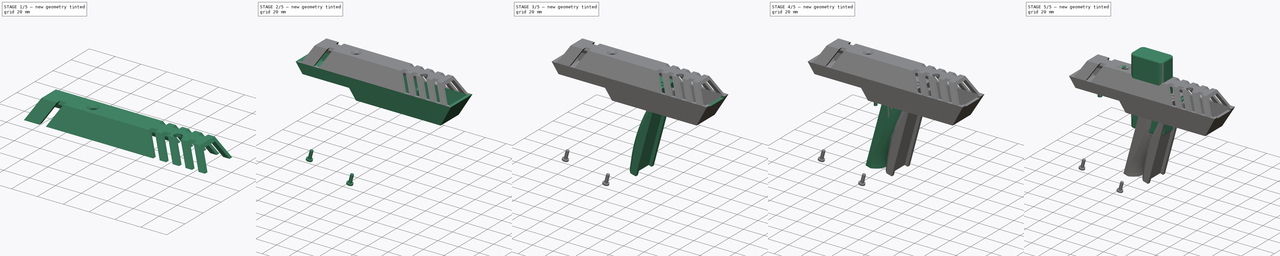
[diagram: build sequence overview — one tinted view per stage of 5, left to right]
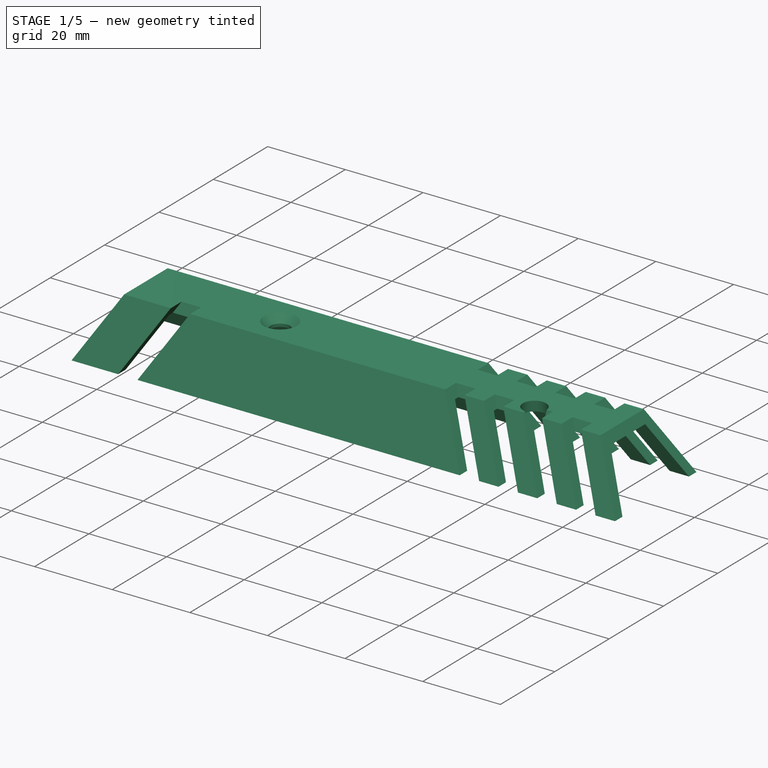
[diagram: stage 1 of 5 — iso view after this stage's code; geometry added in this stage tinted green]
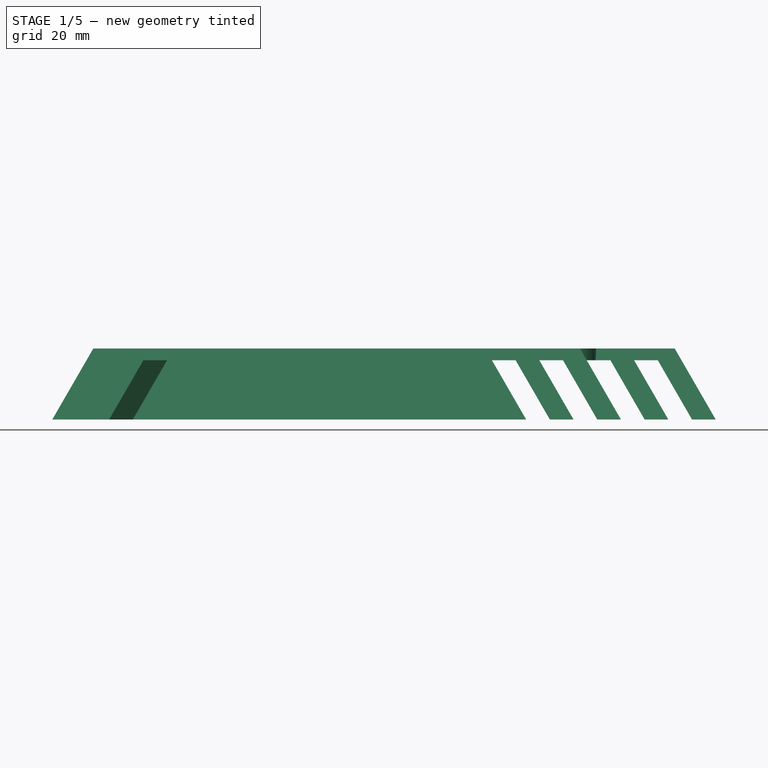
[diagram: stage 1 of 5 — front view after this stage's code; geometry added in this stage tinted green]
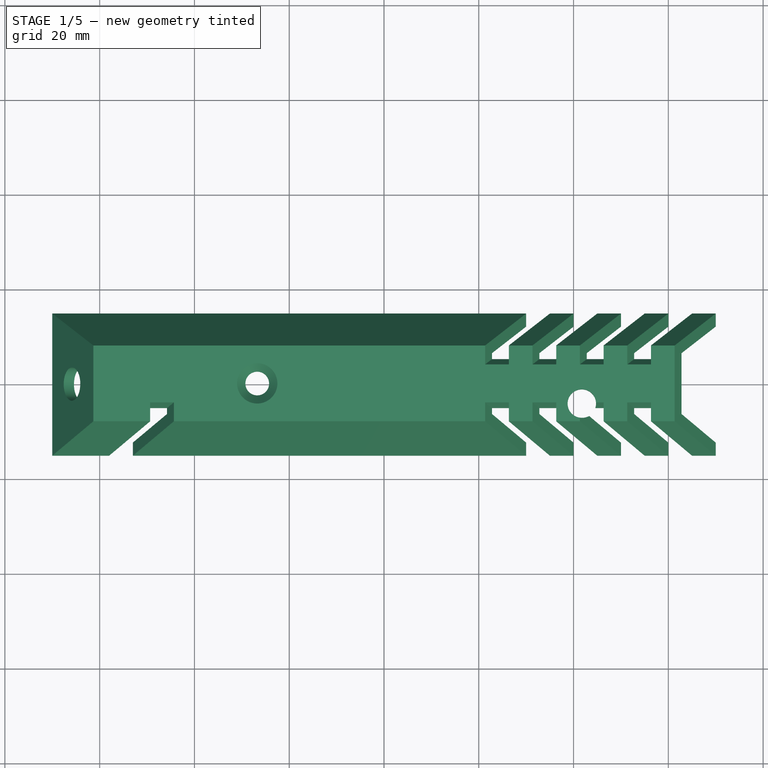
[diagram: stage 1 of 5 — top view after this stage's code; geometry added in this stage tinted green]
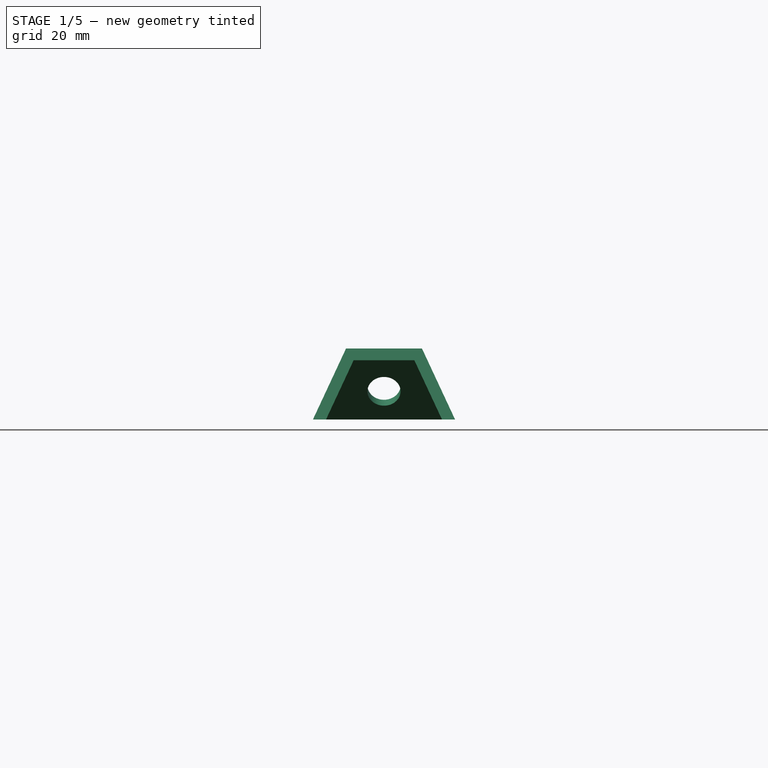
[diagram: stage 1 of 5 — right view after this stage's code; geometry added in this stage tinted green]
FCSTD DOCUMENT  (FreeCAD 0.18R16110 (Git))
Label: Ir duellers
License: All rights reserved
LicenseURL: http://en.wikipedia.org/wiki/All_rights_reserved
objects: Sketcher::SketchObject×35, PartDesign::Pocket×19, Part::Feature×18, PartDesign::Pad×11, PartDesign::Body×8, Part::FeaturePython×8, App::Part×5, PartDesign::SubtractivePipe×4, PartDesign::Fillet×2, PartDesign::Thickness×2, PartDesign::Draft×2, PartDesign::Mirrored×2, PartDesign::Chamfer×2, PartDesign::AdditiveCylinder×1, PartDesign::LinearPattern×1, PartDesign::MultiTransform×1
note: 151 computed .brp shape members not serialized (recipe doc carries the construction recipe); baked Part::Feature solids carry a one-line shape summary decoded from their .brp

FEATURE [Sketcher::SketchObject] Sketch005
  MapMode = 5
  Support = -> [XY_Plane008]
  sketch-geometry (4):
    g0: LineSegment StartX=-70 StartY=15 StartZ=0 EndX=70 EndY=15 EndZ=0
    g1: LineSegment StartX=70 StartY=15 StartZ=0 EndX=70 EndY=-15 EndZ=0
    g2: LineSegment StartX=70 StartY=-15 StartZ=0 EndX=-70 EndY=-15 EndZ=0
    g3: LineSegment StartX=-70 StartY=-15 StartZ=0 EndX=-70 EndY=15 EndZ=0
  constraints (10):
    c: Coincident(g0,g1)
    c: Coincident(g1,g2)
    c: Coincident(g2,g3)
    c: Coincident(g3,g0)
    c: Horizontal(g2)
    c: Vertical(g1)
    c: Symmetric(g0,g2,g-1)
    c: Distance(g3) = 30
    c: Distance(g0) = 140
    c: Symmetric(g0,g0,g-2)
FEATURE [PartDesign::Pad] Pad004
  Length = 15
  Length2 = 100
  Profile = -> Sketch005
  Type = 0
FEATURE [PartDesign::Draft] Draft
  Angle = 25
  Base = -> Pad004 [Face1,Face3]
  BaseFeature = -> Pad004
  NeutralPlane = -> Pad004 [Face5]
  Reversed = true
FEATURE [PartDesign::Draft] Draft001
  Angle = 30
  Base = -> Draft [Face4,Face2]
  BaseFeature = -> Draft
  NeutralPlane = -> Draft [Face5]
  Reversed = true
FEATURE [PartDesign::Thickness] Thickness001
  Base = -> Draft001 [Face5,Face2]
  BaseFeature = -> Draft001
  Join = 0
  Mode = 0
  Reversed = true
  Value = 2.5
FEATURE [Sketcher::SketchObject] Sketch014
  ExternalGeometry = -> [Thickness001]
  MapMode = 5
  Placement = pos=(0,0,15) rot=(0,0,1;0rad)
  Support = -> [Thickness001]
  sketch-geometry (4):
    g0: LineSegment StartX=51.3397 StartY=-15 StartZ=0 EndX=56.3397 EndY=-15 EndZ=0
    g1: LineSegment StartX=56.3397 StartY=-15 StartZ=0 EndX=56.3397 EndY=-4 EndZ=0
    g2: LineSegment StartX=56.3397 StartY=-4 StartZ=0 EndX=51.3397 EndY=-4 EndZ=0
    g3: LineSegment StartX=51.3397 StartY=-4 StartZ=0 EndX=51.3397 EndY=-15 EndZ=0
  constraints (12):
    c: Coincident(g0,g1)
    c: Coincident(g1,g2)
    c: Coincident(g2,g3)
    c: Coincident(g3,g0)
    c: Horizontal(g0)
    c: Horizontal(g2)
    c: Vertical(g1)
    c: Vertical(g3)
    c: PointOnObject(g0,g-5)
    c: DistanceX(g1,g-3) = 5
    c: Distance(g0) = 5
    c: Distance(g3) = 11
FEATURE [PartDesign::SubtractivePipe] SubtractivePipe002  label="cooling fin"
  AuxilleryCurvelinear = true
  AuxillerySpineTangent = false
  BaseFeature = -> Thickness001
  Binormal = (0,0,0)
  Mode = 0
  Profile = -> Sketch014
  Spine = -> Thickness001 [Edge1]
  SpineTangent = false
  Transformation = 0
  Transition = 0
FEATURE [PartDesign::Mirrored] Mirrored
  MirrorPlane = -> XZ_Plane008
FEATURE [PartDesign::LinearPattern] LinearPattern
  Direction = -> X_Axis008
  Length = 30
  Occurrences = 4
  Reversed = true
FEATURE [PartDesign::MultiTransform] MultiTransform  label="cooling fins"
  BaseFeature = -> SubtractivePipe002
  Originals = -> [SubtractivePipe002]
  Transformations = -> [Mirrored,LinearPattern]
FEATURE [Sketcher::SketchObject] Sketch015
  ExternalGeometry = -> [MultiTransform]
  MapMode = 5
  Placement = pos=(0,0,15) rot=(0,0,1;0rad)
  Support = -> [MultiTransform]
  sketch-geometry (1):
    g0: Circle CenterX=41.7397 CenterY=-4.25 CenterZ=0 NormalX=0 NormalY=0 NormalZ=1 AngleXU=0 Radius=3
  constraints (3):
    c: Radius(g0) = 3
    c: DistanceY(g0,g-3) = 0.25
    c: DistanceX(g-3,g0) = 0.4
FEATURE [PartDesign::Pocket] Pocket005  label="led hole"
  BaseFeature = -> MultiTransform
  Length = 5
  Length2 = 100
  Profile = -> Sketch015
  Type = 1
FEATURE [Sketcher::SketchObject] Sketch023
  MapMode = 5
  Placement = pos=(0,0,0) rot=(1,0,0;3.14159rad)
  Support = -> [Pad009]
  sketch-geometry (1):
    g0: Circle CenterX=0 CenterY=0 CenterZ=0 NormalX=0 NormalY=0 NormalZ=1 AngleXU=0 Radius=2.19496
FEATURE [Sketcher::SketchObject] Sketch024
  MapMode = 5
  Placement = pos=(0,0,15) rot=(0,0,1;0rad)
  Support = -> [Pocket005]
  sketch-geometry (1):
    g0: Circle CenterX=-26.75 CenterY=0 CenterZ=0 NormalX=0 NormalY=0 NormalZ=1 AngleXU=0 Radius=2.5
  constraints (3):
    c: PointOnObject(g0,g-1)
    c: DistanceX(g0,g-1) = 26.75
    c: Radius(g0) = 2.5
FEATURE [PartDesign::Pocket] Pocket010
  BaseFeature = -> Pocket005
  Length = 5
  Length2 = 100
  Profile = -> Sketch024
  Type = 1
FEATURE [PartDesign::Chamfer] Chamfer
  Base = -> Pocket010 [Edge47]
  BaseFeature = -> Pocket010
  Size = 1.75
FEATURE [Sketcher::SketchObject] Sketch026
  ExternalGeometry = -> [Chamfer]
  MapMode = 5
  Placement = pos=(-52.5,0,30.3109) rot=(0.447214,-0.447214,-0.774597;1.82348rad)
  Support = -> [Chamfer]
  sketch-geometry (1):
    g0: Circle CenterX=0 CenterY=-26.6795 CenterZ=0 NormalX=0 NormalY=0 NormalZ=1 AngleXU=0 Radius=3.5
  constraints (3):
    c: PointOnObject(g0,g-2)
    c: DistanceY(g0,g-5) = 9
    c: Radius(g0) = 3.5
FEATURE [PartDesign::Pocket] Pocket013  label="reset switch hole"
  BaseFeature = -> Chamfer
  Length = 5
  Length2 = 100
  Profile = -> Sketch026
  Type = 2
FEATURE [App::Part] Part  label="screws"
  Group = -> [Screw001,Screw002,Screw,Screw003,Screw004,Screw005,Screw006,Screw007]
  Origin = -> Origin010
FEATURE [Sketcher::SketchObject] Sketch034
  ExternalGeometry = -> [Pocket013]
  MapMode = 5
  Placement = pos=(0,0,15) rot=(0,0,1;0rad)
  Support = -> [Pocket013]
  sketch-geometry (4):
    g0: LineSegment StartX=-49.3397 StartY=-4 StartZ=0 EndX=-44.3397 EndY=-4 EndZ=0
    g1: LineSegment StartX=-44.3397 StartY=-4 StartZ=0 EndX=-44.3397 EndY=-15 EndZ=0
    g2: LineSegment StartX=-44.3397 StartY=-15 StartZ=0 EndX=-49.3397 EndY=-15 EndZ=0
    g3: LineSegment StartX=-49.3397 StartY=-15 StartZ=0 EndX=-49.3397 EndY=-4 EndZ=0
  constraints (12):
    c: Coincident(g0,g1)
    c: Coincident(g1,g2)
    c: Coincident(g2,g3)
    c: Coincident(g3,g0)
    c: Horizontal(g0)
    c: Horizontal(g2)
    c: Vertical(g1)
    c: Vertical(g3)
    c: Horizontal(g2,g-4)
    c: Distance(g3) = 11
    c: Distance(g0) = 5
    c: DistanceX(g-4,g2) = 12
FEATURE [PartDesign::SubtractivePipe] SubtractivePipe003
  AuxilleryCurvelinear = true
  AuxillerySpineTangent = false
  BaseFeature = -> Pocket013
  Binormal = (0,0,0)
  Mode = 0
  Profile = -> Sketch034
  Spine = -> Pocket013 [Edge140]
  SpineTangent = false
  Transformation = 0
  Transition = 0
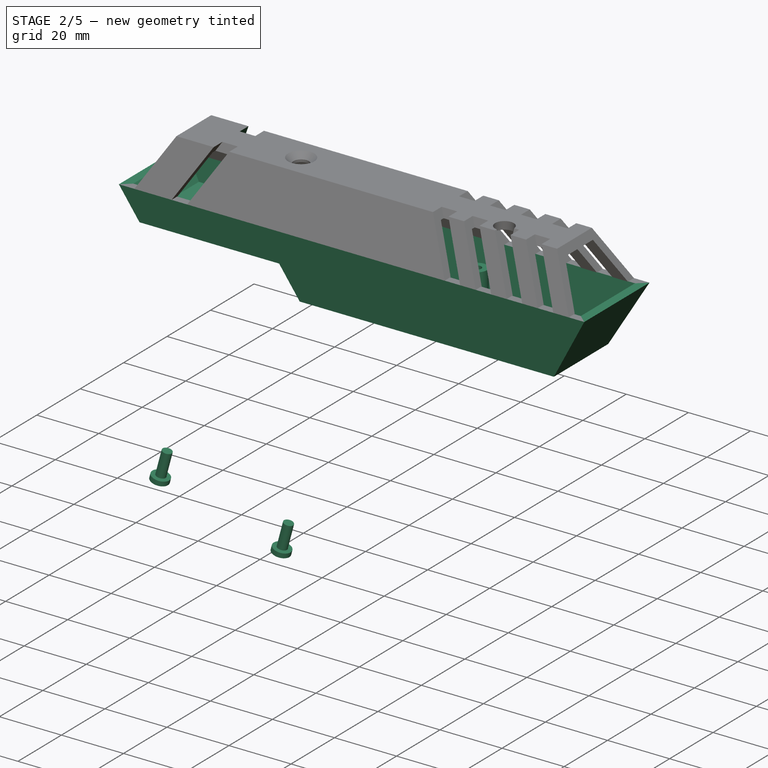
[diagram: stage 2 of 5 — iso view after this stage's code; geometry added in this stage tinted green]
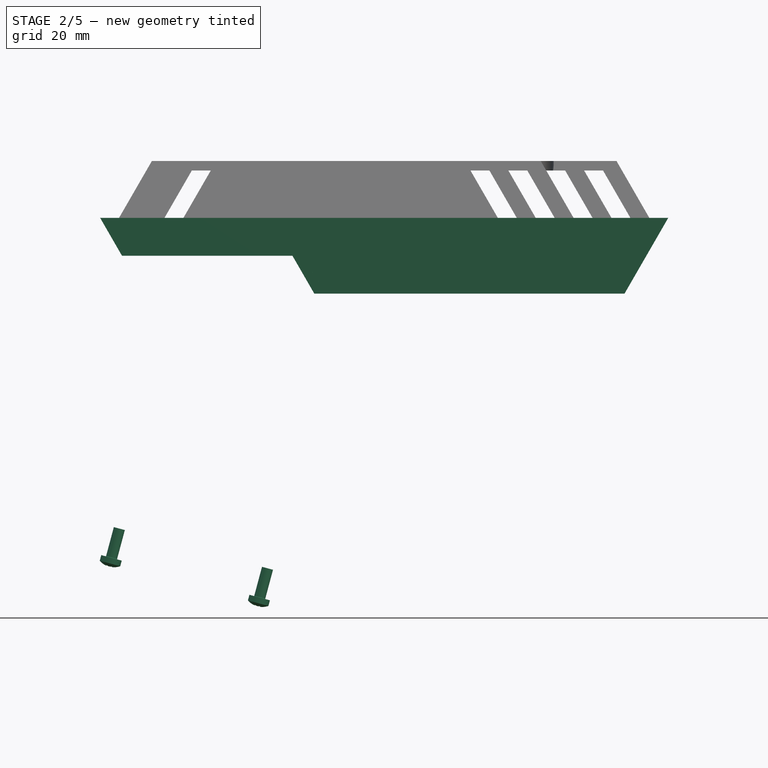
[diagram: stage 2 of 5 — front view after this stage's code; geometry added in this stage tinted green]
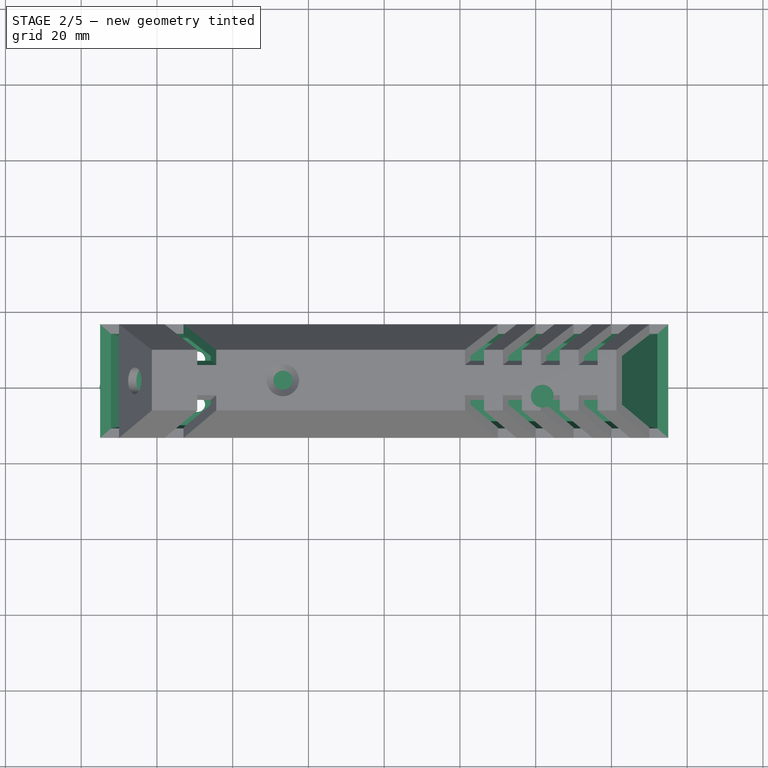
[diagram: stage 2 of 5 — top view after this stage's code; geometry added in this stage tinted green]
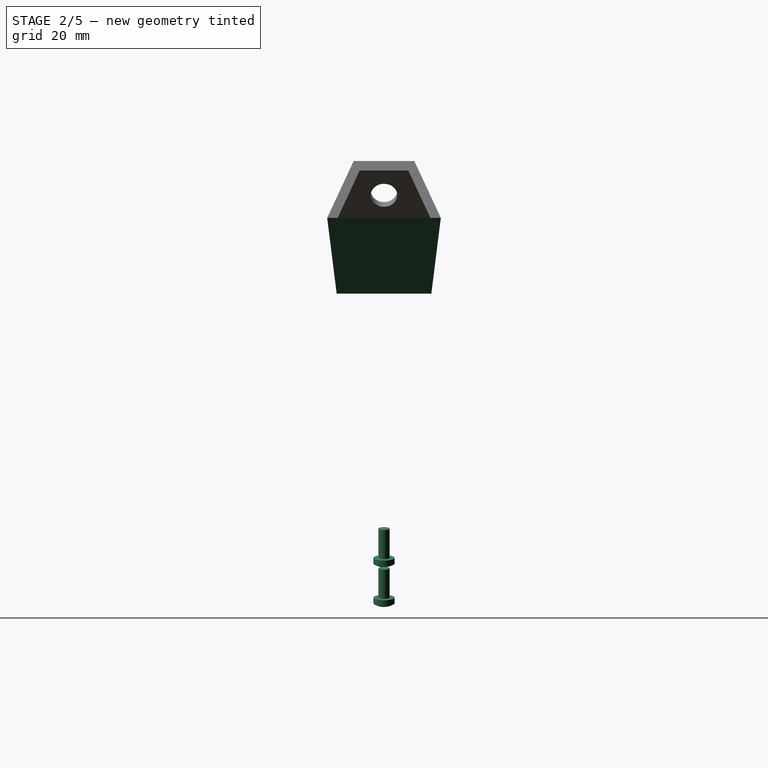
[diagram: stage 2 of 5 — right view after this stage's code; geometry added in this stage tinted green]
FEATURE [PartDesign::Body] Body  label="battery case"
  Group = -> [Sketch,Pad,Fillet,Fillet001]
  Origin = -> Origin004
  Placement = pos=(-42.5512,0,-60.1655) rot=(0,1,0;0.261799rad)
  Tip = -> Fillet001
FEATURE [Sketcher::SketchObject] Sketch001  label="basic shape001"
  MapMode = 5
  Placement = pos=(0,0,0) rot=(1,0,0;1.5708rad)
  Support = -> [XZ_Plane005]
  sketch-geometry (6):
    g0: LineSegment StartX=-75 StartY=0 StartZ=0 EndX=-69.2265 EndY=-10 EndZ=0
    g1: LineSegment StartX=-69.2265 StartY=-10 StartZ=0 EndX=-24.2265 EndY=-10 EndZ=0
    g2: LineSegment StartX=-24.2265 StartY=-10 StartZ=0 EndX=-18.453 EndY=-20 EndZ=0
    g3: LineSegment StartX=-18.453 StartY=-20 StartZ=0 EndX=63.453 EndY=-20 EndZ=0
    g4: LineSegment StartX=63.453 StartY=-20 StartZ=0 EndX=75 EndY=0 EndZ=0
    g5: LineSegment StartX=-75 StartY=0 StartZ=0 EndX=75 EndY=0 EndZ=0
  constraints (17):
    c: PointOnObject(g0,g-1)
    c: Coincident(g1,g0)
    c: Horizontal(g1)
    c: Coincident(g2,g1)
    c: Coincident(g3,g2)
    c: Horizontal(g3)
    c: Coincident(g4,g3)
    c: DistanceY(g0,g0) = 10
    c: DistanceY(g3,g4) = 20
    c: Angle(g3,g2) = 2.0944
    c: Symmetric(g0,g4,g-2)
    c: Distance(g1) = 45
    c: DistanceX(g0,g4) = 150
    c: Coincident(g5,g0)
    c: Coincident(g5,g4)
    c: Angle(g0,g5) = 1.0472
    c: Angle(g5,g4) = 1.0472
FEATURE [PartDesign::Pad] Pad001  label="basic shape"
  Length = 30
  Length2 = 100
  Midplane = true
  Placement = pos=(0,0,0) rot=(1,0,0;1.5708rad)
  Profile = -> Sketch001
  Type = 0
FEATURE [Sketcher::SketchObject] Sketch002
  ExternalGeometry = -> [Pad001]
  MapMode = 5
  Placement = pos=(0,0,0) rot=(0.57735,0.57735,0.57735;2.0944rad)
  Support = -> [YZ_Plane005]
  sketch-geometry (6):
    g0: LineSegment StartX=-15 StartY=0 StartZ=0 EndX=-12.5 EndY=-20 EndZ=0
    g1: LineSegment StartX=-12.5 StartY=-20 StartZ=0 EndX=-15 EndY=-20 EndZ=0
    g2: LineSegment StartX=-15 StartY=-20 StartZ=0 EndX=-15 EndY=0 EndZ=0
    g3: LineSegment StartX=15 StartY=-20 StartZ=0 EndX=15 EndY=0 EndZ=0
    g4: LineSegment StartX=15 StartY=0 StartZ=0 EndX=12.5 EndY=-20 EndZ=0
    g5: LineSegment StartX=12.5 StartY=-20 StartZ=0 EndX=15 EndY=-20 EndZ=0
  constraints (13):
    c: Coincident(g0,g-3)
    c: Coincident(g1,g0)
    c: Coincident(g1,g-3)
    c: Coincident(g2,g1)
    c: Coincident(g2,g0)
    c: Coincident(g3,g-4)
    c: Coincident(g3,g-4)
    c: Coincident(g4,g3)
    c: Coincident(g5,g4)
    c: Coincident(g5,g3)
    c: Symmetric(g0,g4,g-2)
    c: DistanceX(g0,g4) = 25
    c: Horizontal(g1,g4)
FEATURE [PartDesign::Pocket] Pocket  label="side chamfer"
  BaseFeature = -> Pad001
  Length = 5
  Length2 = 100
  Midplane = true
  Placement = pos=(0,0,0) rot=(1,0,0;1.5708rad)
  Profile = -> Sketch002
  Type = 1
FEATURE [PartDesign::Thickness] Thickness
  Base = -> Pocket [Face5]
  BaseFeature = -> Pocket
  Join = 1
  Mode = 0
  Reversed = true
  Value = 2.5
FEATURE [Sketcher::SketchObject] Sketch006
  ExternalGeometry = -> [Thickness]
  MapMode = 5
  Placement = pos=(0,0,-17.5) rot=(0,0,1;0rad)
  Support = -> [Thickness]
  sketch-geometry (1):
    g0: Circle CenterX=30.0096 CenterY=0 CenterZ=0 NormalX=0 NormalY=0 NormalZ=1 AngleXU=0 Radius=3
  constraints (3):
    c: PointOnObject(g0,g-1)
    c: DistanceX(g0,g-3) = 32
    c: Radius(g0) = 3
FEATURE [PartDesign::Pad] Pad005  label="pcb stand main extrusion"
  BaseFeature = -> Thickness
  Length = 15.6
  Length2 = 100
  Profile = -> Sketch006
  Type = 0
FEATURE [Sketcher::SketchObject] Sketch007
  ExternalGeometry = -> [Pad005]
  MapMode = 5
  Placement = pos=(0,0,-1.9) rot=(0,0,1;0rad)
  Support = -> [Pad005]
  sketch-geometry (1):
    g0: Circle CenterX=30.0096 CenterY=0 CenterZ=0 NormalX=0 NormalY=0 NormalZ=1 AngleXU=0 Radius=1.3
  constraints (2):
    c: Coincident(g0,g-3)
    c: Radius(g0) = 1.3
FEATURE [PartDesign::Pocket] Pocket001  label="pcb stand screw hole"
  BaseFeature = -> Pad005
  Length = 15
  Length2 = 100
  Profile = -> Sketch007
  Type = 0
FEATURE [Sketcher::SketchObject] Sketch018
  MapMode = 5
  Placement = pos=(-22.5,0,-12.9904) rot=(0.654654,-0.654654,-0.377964;2.41886rad)
  Support = -> [Pocket001]
  sketch-geometry (1):
    g0: Circle CenterX=0 CenterY=-2 CenterZ=0 NormalX=0 NormalY=0 NormalZ=1 AngleXU=0 Radius=4
  constraints (3):
    c: PointOnObject(g0,g-2)
    c: Radius(g0) = 4
    c: DistanceY(g0,g-1) = 2
FEATURE [PartDesign::Pocket] Pocket008  label="hole for wires"
  BaseFeature = -> Pocket001
  Length = 5
  Length2 = 100
  Profile = -> Sketch018
  Type = 2
FEATURE [PartDesign::Body] Body005  label="piezo"
  Group = -> [Sketch019,Pad007]
  Origin = -> Origin009
  Placement = pos=(8,-2e-15,-7.07107) rot=(-1,0,0;0.785398rad)
  Tip = -> Pad007
FEATURE [Sketcher::SketchObject] Sketch020
  ExternalGeometry = -> [Pocket008]
  MapMode = 5
  Placement = pos=(0,0,-7.5) rot=(0,0,1;0rad)
  Support = -> [Pocket008]
  sketch-geometry (2):
    g0: Circle CenterX=-49.2831 CenterY=6 CenterZ=0 NormalX=0 NormalY=0 NormalZ=1 AngleXU=0 Radius=2
    g1: Circle CenterX=-49.2831 CenterY=-6 CenterZ=0 NormalX=0 NormalY=0 NormalZ=1 AngleXU=0 Radius=2
  constraints (5):
    c: Symmetric(g0,g1,g-1)
    c: Distance(g0,g1) = 12
    c: DistanceX(g-3,g0) = 18.5
    c: Radius(g0) = 2
    c: Radius(g1) = 2
FEATURE [PartDesign::Pocket] Pocket009  label="back grip screw holes"
  BaseFeature = -> Pocket008
  Length = 5
  Length2 = 100
  Profile = -> Sketch020
  Type = 1
FEATURE [PartDesign::Body] Body001  label="bottom base"
  Group = -> [Sketch001,Pad001,Sketch002,Pocket,Thickness,Sketch006,Pad005,Sketch007,Pocket001,Sketch018,Pocket008,Sketch020,Pocket009,Sketch021,Pad008,Sketch027,Pocket014,Chamfer001,Sketch028,Pocket015,Sketch032,Pad011,Sketch033,Pocket018]
  Origin = -> Origin005
  Tip = -> Pocket018
FEATURE [Part::FeaturePython] Screw006  label="M3x8-Screw bottom"  # Fasteners workbench fastener (typed FeaturePython)
  Placement = pos=(-71.9943,0,-89.7654) rot=(0,1,0;3.40339rad)
  diameter = 4
  invert = false
  length = 3
  matchOuter = false
  offset = 0
  thread = false
  type = 16
FEATURE [Part::FeaturePython] Screw007  label="M3x8-Screw bottom001"  # Fasteners workbench fastener (typed FeaturePython)
  Placement = pos=(-32.8743,0,-100.248) rot=(0,1,0;3.40339rad)
  diameter = 4
  invert = false
  length = 3
  matchOuter = false
  offset = 0
  thread = false
  type = 16
FEATURE [PartDesign::Mirrored] Mirrored001
  BaseFeature = -> SubtractivePipe003
  MirrorPlane = -> XZ_Plane008
  Originals = -> [SubtractivePipe003]
FEATURE [PartDesign::Body] Body004  label="top base"
  Group = -> [Sketch005,Pad004,Draft,Draft001,Thickness001,Sketch014,SubtractivePipe002,MultiTransform,Mirrored,LinearPattern,Sketch015,Pocket005,Sketch024,Pocket010,Chamfer,Sketch026,Pocket013,Sketch034,SubtractivePipe003,Mirrored001]
  Origin = -> Origin008
  Placement = pos=(-5,0,0) rot=(0,0,1;0rad)
  Tip = -> Mirrored001
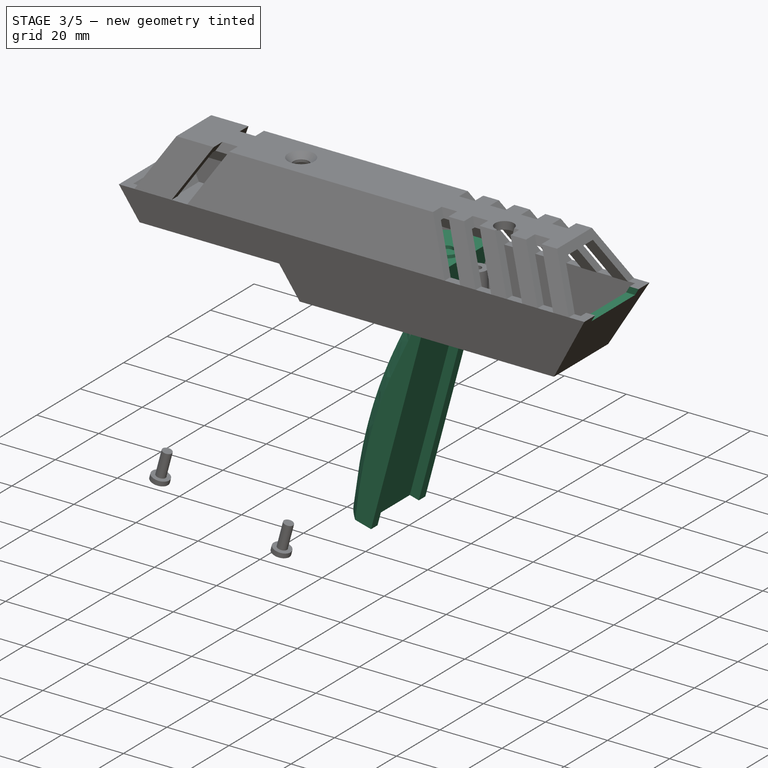
[diagram: stage 3 of 5 — iso view after this stage's code; geometry added in this stage tinted green]
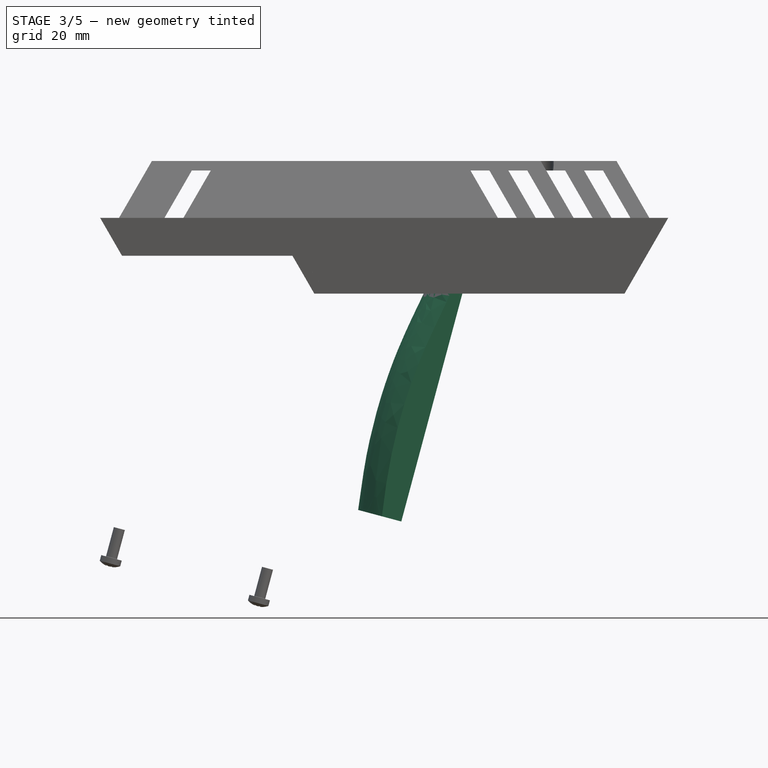
[diagram: stage 3 of 5 — front view after this stage's code; geometry added in this stage tinted green]
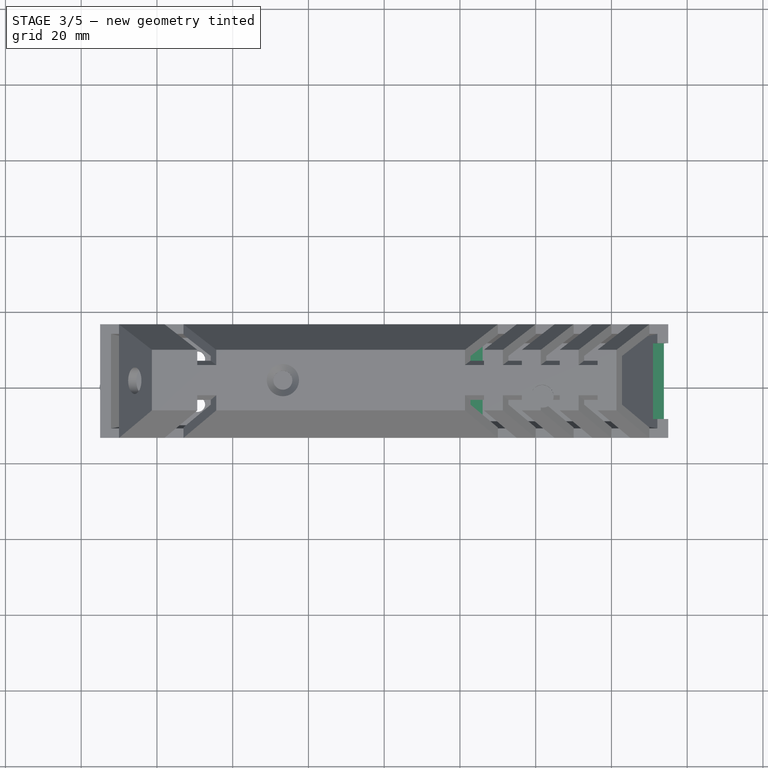
[diagram: stage 3 of 5 — top view after this stage's code; geometry added in this stage tinted green]
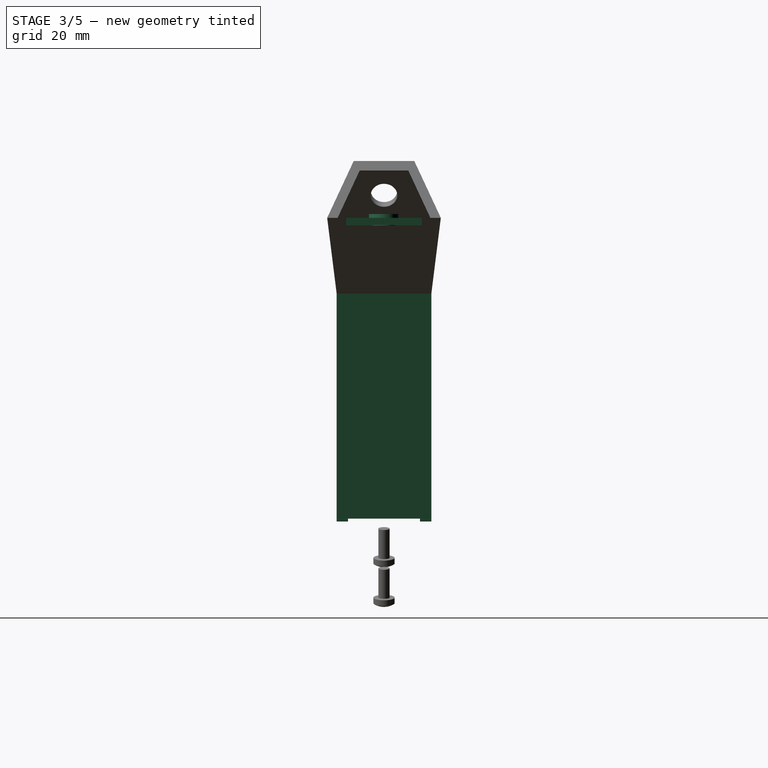
[diagram: stage 3 of 5 — right view after this stage's code; geometry added in this stage tinted green]
FEATURE [Sketcher::SketchObject] Sketch003
  MapMode = 5
  Placement = pos=(0,0,0) rot=(1,0,0;1.5708rad)
  Support = -> [XZ_Plane006]
  sketch-geometry (10):
    g0: LineSegment StartX=0 StartY=0 StartZ=0 EndX=-20.7055 EndY=-77.2741 EndZ=0
    g1: LineSegment StartX=-20.7055 StartY=-77.2741 StartZ=0 EndX=-9.11441 EndY=-80.3799 EndZ=0
    g2: LineSegment StartX=0 StartY=0 StartZ=0 EndX=12 EndY=0 EndZ=0
    g3-g6: Circle [constr] x4 (B-spline internal-alignment scaffolding for g7; pole/knot coordinates omitted)
    g7: BSplineCurve PolesCount=4 KnotsCount=2 Degree=3 IsPeriodic=0
    g8: GeomPoint [constr] X=-9.11441 Y=-80.3799 Z=0
    g9: GeomPoint [constr] X=12 Y=0 Z=0
  constraints (22):
    c: Coincident(g0,g-1)
    c: Coincident(g1,g0)
    c: Horizontal(g2)
    c: Perpendicular(g1,g0)
    c: Distance(g2) = 12
    c: Angle(g0,g2) = 1.8326
    c: Distance(g0) = 80
    c: Distance(g1) = 12
    c: Coincident(g2,g0)
    c: Radius(g3) = 5
    c: Equal(g3,g4)
    c: Equal(g3,g5)
    c: Equal(g3,g6)
    c: Coincident(g7,g2)
    c: InternalAlignment(g3-g6 -> g7) x4
    c: InternalAlignment(g8,g7)
    c: InternalAlignment(g9,g7)
    c: Coincident(g7,g1)
    c: Vertical(g1,g4)
    c: DistanceY(g1,g4) = 20
    c: Vertical(g2,g5)
    c: DistanceY(g5,g2) = 45
FEATURE [Sketcher::SketchObject] Sketch004
  MapMode = 5
  Placement = pos=(0,0,0) rot=(1,0,0;1.5708rad)
  Support = -> [XZ_Plane007]
  sketch-geometry (10):
    g0: LineSegment StartX=0 StartY=0 StartZ=0 EndX=26 EndY=0 EndZ=0
    g1: LineSegment StartX=26 StartY=0 StartZ=0 EndX=4.51802 EndY=-80.1718 EndZ=0
    g2: LineSegment StartX=4.51802 StartY=-80.1718 StartZ=0 EndX=-7.07309 EndY=-77.066 EndZ=0
    g3-g6: Circle [constr] x4 (B-spline internal-alignment scaffolding for g7; pole/knot coordinates omitted)
    g7: BSplineCurve PolesCount=4 KnotsCount=2 Degree=3 IsPeriodic=0
    g8: GeomPoint [constr] X=0 Y=0 Z=0
    g9: GeomPoint [constr] X=-7.07309 Y=-77.066 Z=0
  constraints (22):
    c: Horizontal(g0)
    c: Coincident(g1,g0)
    c: Coincident(g2,g1)
    c: Angle(g0,g1) = 1.309
    c: Distance(g0) = 26
    c: Distance(g1) = 83
    c: Perpendicular(g1,g2)
    c: Distance(g2) = 12
    c: Radius(g3) = 5
    c: Equal(g3,g5)
    c: Equal(g3,g6)
    c: Coincident(g7,g2)
    c: InternalAlignment(g3-g6 -> g7) x4
    c: InternalAlignment(g8,g7)
    c: InternalAlignment(g9,g7)
    c: Vertical(g5,g7)
    c: DistanceY(g5,g7) = 15
    c: Coincident(g0,g-1)
    c: Coincident(g7,g0)
    c: DistanceY(g4,g0) = 12
    c: DistanceX(g0,g4) = 30
    c: Radius(g4) = 4.95
FEATURE [PartDesign::Pad] Pad003
  Length = 25
  Length2 = 100
  Midplane = true
  Placement = pos=(0,0,0) rot=(1,0,0;1.5708rad)
  Profile = -> Sketch004
  Type = 0
FEATURE [Sketcher::SketchObject] Sketch008
  ExternalGeometry = -> [Pad003]
  MapMode = 5
  Placement = pos=(-19.7403,-1.64e-14,-73.6718) rot=(0.991445,0,-0.130526;3.14159rad)
  Support = -> [Pad003]
  sketch-geometry (4):
    g0: LineSegment StartX=25.1141 StartY=-9.5 StartZ=0 EndX=22.1141 EndY=-9.5 EndZ=0
    g1: LineSegment StartX=22.1141 StartY=-9.5 StartZ=0 EndX=22.1141 EndY=9.5 EndZ=0
    g2: LineSegment StartX=22.1141 StartY=9.5 StartZ=0 EndX=25.1141 EndY=9.5 EndZ=0
    g3: LineSegment StartX=25.1141 StartY=9.5 StartZ=0 EndX=25.1141 EndY=-9.5 EndZ=0
  constraints (11):
    c: Coincident(g0,g1)
    c: Coincident(g1,g2)
    c: Coincident(g2,g3)
    c: Coincident(g3,g0)
    c: Horizontal(g0)
    c: Horizontal(g2)
    c: Vertical(g3)
    c: PointOnObject(g0,g-3)
    c: Symmetric(g0,g1,g-1)
    c: Distance(g1) = 19
    c: Distance(g0) = 3
FEATURE [PartDesign::Pocket] Pocket002
  BaseFeature = -> Pad003
  Length = 70
  Length2 = 100
  Placement = pos=(0,0,0) rot=(1,0,0;1.5708rad)
  Profile = -> Sketch008
  Type = 0
FEATURE [Sketcher::SketchObject] Sketch010
  ExternalGeometry = -> [Pocket002]
  MapMode = 5
  Placement = pos=(-19.7403,-1.64e-14,-73.6718) rot=(0.991445,0,-0.130526;3.14159rad)
  Support = -> [Pocket002]
  sketch-geometry (6):
    g0: LineSegment StartX=13.1141 StartY=12.5 StartZ=0 EndX=13.1141 EndY=-12.5 EndZ=0
    g1: LineSegment StartX=13.1141 StartY=-12.5 StartZ=0 EndX=19.8245 EndY=-12.5 EndZ=0
    g2: LineSegment StartX=13.1141 StartY=12.5 StartZ=0 EndX=19.8245 EndY=12.5 EndZ=0
    g3: ArcOfParabola CenterX=13.3141 CenterY=0 CenterZ=0 NormalX=0 NormalY=0 NormalZ=1 Focal=6 AngleXU=0 StartAngle=-12.5 EndAngle=12.5
    g4: GeomPoint X=19.3141 Y=0 Z=0
    g5: LineSegment [constr] StartX=13.3141 StartY=0 StartZ=0 EndX=19.3141 EndY=0 EndZ=0
  constraints (15):
    c: Coincident(g0,g-4)
    c: Coincident(g0,g-5)
    c: Coincident(g1,g0)
    c: Horizontal(g1)
    c: Coincident(g2,g0)
    c: PointOnObject(g2,g-3)
    c: InternalAlignment(g4,g3)
    c: Coincident(g4,g5)
    c: Coincident(g3,g5)
    c: PointOnObject(g4,g-1)
    c: PointOnObject(g3,g-1)
    c: Coincident(g3,g2)
    c: Coincident(g3,g1)
    c: DistanceX(g0,g3) = 0.2
    c: Distance(g5) = 6
FEATURE [PartDesign::SubtractivePipe] SubtractivePipe  label="groove"
  AuxilleryCurvelinear = true
  AuxillerySpineTangent = false
  BaseFeature = -> Pocket002
  Binormal = (0,0,0)
  Mode = 0
  Placement = pos=(0,0,0) rot=(1,0,0;1.5708rad)
  Profile = -> Sketch010
  Spine = -> Pocket002 [Edge7]
  SpineTangent = false
  Transformation = 0
  Transition = 0
FEATURE [Sketcher::SketchObject] Sketch016
  MapMode = 5
  Placement = pos=(0,0,0) rot=(0,0,1;3.14159rad)
  Support = -> [SubtractivePipe]
  sketch-geometry (2):
    g0: Circle CenterX=-20 CenterY=6 CenterZ=0 NormalX=0 NormalY=0 NormalZ=1 AngleXU=0 Radius=1.25
    g1: Circle CenterX=-20 CenterY=-6 CenterZ=0 NormalX=0 NormalY=0 NormalZ=1 AngleXU=0 Radius=1.25
  constraints (5):
    c: Symmetric(g0,g1,g-1)
    c: Distance(g0,g1) = 12
    c: Radius(g1) = 1.25
    c: Radius(g0) = 1.25
    c: DistanceX(g0,g-1) = 20
FEATURE [PartDesign::Pocket] Pocket006  label="screw holes"
  BaseFeature = -> SubtractivePipe
  Length = 10
  Length2 = 100
  Placement = pos=(0,0,0) rot=(1,0,0;1.5708rad)
  Profile = -> Sketch016
  Type = 0
FEATURE [Sketcher::SketchObject] Sketch021
  ExternalGeometry = -> [Pocket009]
  MapMode = 5
  Placement = pos=(0,0,-7.5) rot=(0,0,1;0rad)
  Support = -> [Pocket009]
  sketch-geometry (1):
    g0: Circle CenterX=-31.7831 CenterY=0 CenterZ=0 NormalX=0 NormalY=0 NormalZ=1 AngleXU=0 Radius=2
  constraints (3):
    c: PointOnObject(g0,g-1)
    c: Radius(g0) = 2
    c: DistanceX(g-3,g0) = 36
FEATURE [PartDesign::Pad] Pad008
  BaseFeature = -> Pocket009
  Length = 7
  Length2 = 100
  Profile = -> Sketch021
  Type = 0
FEATURE [Sketcher::SketchObject] Sketch027
  MapMode = 5
  Placement = pos=(0,0,-17.5) rot=(0,0,1;0rad)
  Support = -> [Pad008]
  sketch-geometry (2):
    g0: Circle CenterX=-14.5 CenterY=7.5 CenterZ=0 NormalX=0 NormalY=0 NormalZ=1 AngleXU=0 Radius=1.5
    g1: Circle CenterX=-14.5 CenterY=-7.5 CenterZ=0 NormalX=0 NormalY=0 NormalZ=1 AngleXU=0 Radius=1.5
  constraints (5):
    c: Radius(g1) = 1.5
    c: Radius(g0) = 1.5
    c: Symmetric(g1,g0,g-1)
    c: Distance(g0,g1) = 15
    c: DistanceX(g1,g-1) = 14.5
FEATURE [PartDesign::Pocket] Pocket014
  BaseFeature = -> Pad008
  Length = 5
  Length2 = 100
  Profile = -> Sketch027
  Type = 1
FEATURE [PartDesign::Chamfer] Chamfer001
  Base = -> Pocket014 [Edge46,Edge44]
  BaseFeature = -> Pocket014
  Size = 1
FEATURE [Sketcher::SketchObject] Sketch028
  ExternalGeometry = -> [Chamfer001]
  MapMode = 5
  Support = -> [Chamfer001]
  sketch-geometry (4):
    g0: LineSegment StartX=65 StartY=10 StartZ=0 EndX=75 EndY=10 EndZ=0
    g1: LineSegment StartX=75 StartY=10 StartZ=0 EndX=75 EndY=-10 EndZ=0
    g2: LineSegment StartX=75 StartY=-10 StartZ=0 EndX=65 EndY=-10 EndZ=0
    g3: LineSegment StartX=65 StartY=-10 StartZ=0 EndX=65 EndY=10 EndZ=0
  constraints (11):
    c: Coincident(g0,g1)
    c: Coincident(g1,g2)
    c: Coincident(g2,g3)
    c: Coincident(g3,g0)
    c: Horizontal(g0)
    c: Horizontal(g2)
    c: Vertical(g3)
    c: PointOnObject(g0,g-3)
    c: Distance(g0) = 10
    c: Symmetric(g0,g1,g-1)
    c: Distance(g1) = 20
FEATURE [PartDesign::Pocket] Pocket015  label="pcb holder"
  BaseFeature = -> Chamfer001
  Length = 2
  Length2 = 100
  Profile = -> Sketch028
  Type = 0
FEATURE [PartDesign::Body] Body003  label="back grip"
  Group = -> [Sketch004,Pad003,Sketch008,Pocket002,Sketch010,SubtractivePipe,Sketch016,Pocket006,Sketch030,Pocket017]
  Origin = -> Origin007
  Placement = pos=(-69.25,0,-10) rot=(0,0,1;0rad)
  Tip = -> Pocket017
FEATURE [Sketcher::SketchObject] Sketch031
  MapMode = 5
  Support = -> [XY_Plane012]
  sketch-geometry (6):
    g0: ArcOfCircle CenterX=-20.25 CenterY=0 CenterZ=0 NormalX=0 NormalY=0 NormalZ=1 AngleXU=0 Radius=4 StartAngle=1.5708 EndAngle=4.71239
    g1: ArcOfCircle CenterX=20.25 CenterY=0 CenterZ=0 NormalX=0 NormalY=0 NormalZ=1 AngleXU=0 Radius=4 StartAngle=4.71239 EndAngle=7.85398
    g2: LineSegment StartX=-20.25 StartY=-4 StartZ=0 EndX=20.25 EndY=-4 EndZ=0
    g3: LineSegment StartX=-20.25 StartY=4 StartZ=0 EndX=20.25 EndY=4 EndZ=0
    g4: Circle CenterX=-20.25 CenterY=0 CenterZ=0 NormalX=0 NormalY=0 NormalZ=1 AngleXU=0 Radius=2
    g5: Circle CenterX=20.25 CenterY=0 CenterZ=0 NormalX=0 NormalY=0 NormalZ=1 AngleXU=0 Radius=2
  constraints (13):
    c: Tangent(g0,g3) = 1.5708
    c: Tangent(g0,g2) = -1.5708
    c: Tangent(g2,g1) = -1.5708
    c: Tangent(g3,g1) = 1.5708
    c: Horizontal(g2)
    c: Symmetric(g0,g1,g-2)
    c: Horizontal(g0,g-1)
    c: DistanceY(g0,g0) = 4
    c: Distance(g0,g1) = 40.5
    c: Coincident(g4,g0)
    c: Coincident(g5,g1)
    c: Radius(g4) = 2
    c: Radius(g5) = 2
FEATURE [PartDesign::Pad] Pad010
  Length = 1
  Length2 = 100
  Profile = -> Sketch031
  Type = 0
FEATURE [PartDesign::Body] Body007  label="bottom"
  Group = -> [Sketch031,Pad010]
  Origin = -> Origin012
  Placement = pos=(-52.2733,0,-94.9696) rot=(0,1,0;0.261799rad)
  Tip = -> Pad010
FEATURE [Sketcher::SketchObject] Sketch032
  MapMode = 5
  Placement = pos=(0,0,-17.5) rot=(0,0,1;0rad)
  Support = -> [Pocket015]
  sketch-geometry (4):
    g0: LineSegment StartX=4 StartY=4 StartZ=0 EndX=12 EndY=4 EndZ=0
    g1: LineSegment StartX=12 StartY=4 StartZ=0 EndX=12 EndY=-4 EndZ=0
    g2: LineSegment StartX=12 StartY=-4 StartZ=0 EndX=4 EndY=-4 EndZ=0
    g3: LineSegment StartX=4 StartY=-4 StartZ=0 EndX=4 EndY=4 EndZ=0
  constraints (11):
    c: Coincident(g0,g1)
    c: Coincident(g1,g2)
    c: Coincident(g2,g3)
    c: Coincident(g3,g0)
    c: Horizontal(g0)
    c: Horizontal(g2)
    c: Vertical(g1)
    c: Symmetric(g0,g2,g-1)
    c: Distance(g0) = 8
    c: Distance(g3) = 8
    c: DistanceX(g-1,g0) = 4
FEATURE [PartDesign::Pad] Pad011  label="piezo holder primitive"
  BaseFeature = -> Pocket015
  Length = 15
  Length2 = 100
  Profile = -> Sketch032
  Type = 0
FEATURE [Sketcher::SketchObject] Sketch033
  ExternalGeometry = -> [Pad011]
  MapMode = 5
  Placement = pos=(12,0,0) rot=(0.57735,0.57735,0.57735;2.0944rad)
  Support = -> [Pad011]
  sketch-geometry (4):
    g0: LineSegment StartX=4 StartY=-11 StartZ=0 EndX=-4 EndY=-3 EndZ=0
    g1: LineSegment StartX=-4 StartY=-2.5 StartZ=0 EndX=-4 EndY=-3 EndZ=0
    g2: LineSegment StartX=4 StartY=-11 StartZ=0 EndX=4 EndY=-2.5 EndZ=0
    g3: LineSegment StartX=-4 StartY=-2.5 StartZ=0 EndX=4 EndY=-2.5 EndZ=0
  constraints (10):
    c: PointOnObject(g0,g-4)
    c: PointOnObject(g0,g-3)
    c: Coincident(g1,g-3)
    c: Coincident(g1,g0)
    c: Coincident(g2,g0)
    c: Coincident(g2,g-4)
    c: Coincident(g3,g1)
    c: Coincident(g3,g2)
    c: Distance(g2) = 8.5
    c: Distance(g1) = 0.5
FEATURE [PartDesign::Pocket] Pocket018  label="piezo holder final"
  BaseFeature = -> Pad011
  Length = 5
  Length2 = 100
  Profile = -> Sketch033
  Type = 2
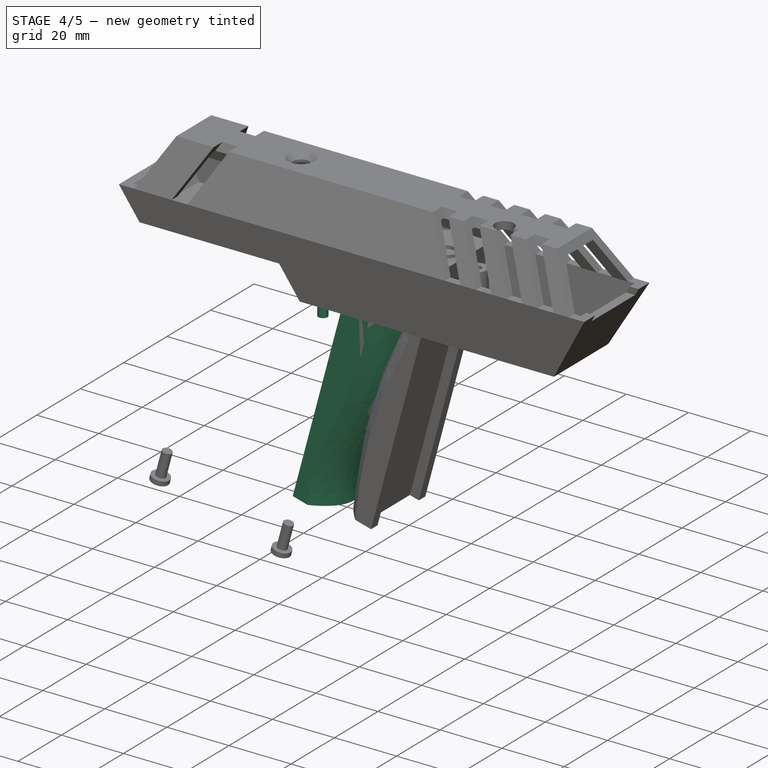
[diagram: stage 4 of 5 — iso view after this stage's code; geometry added in this stage tinted green]
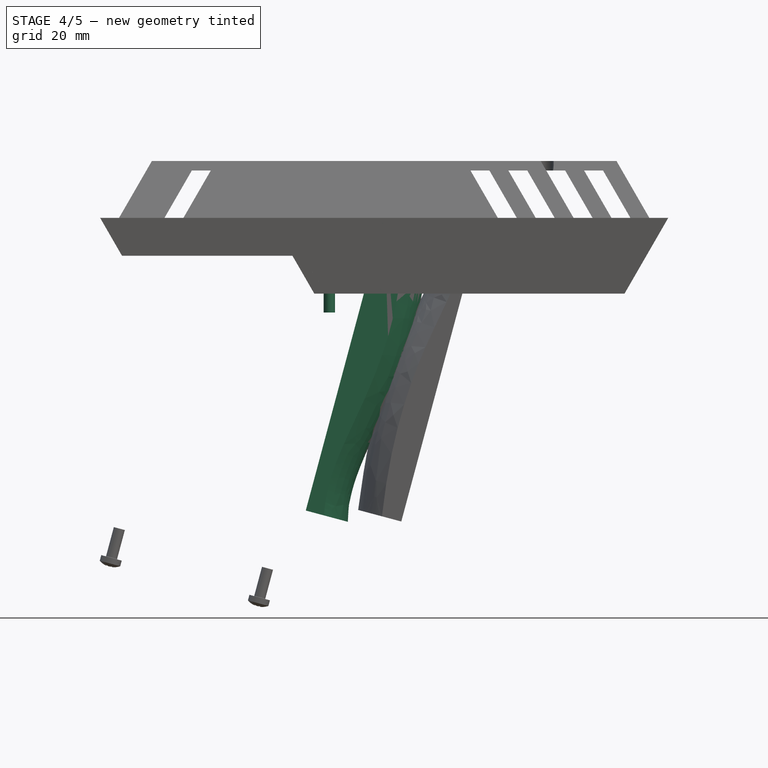
[diagram: stage 4 of 5 — front view after this stage's code; geometry added in this stage tinted green]
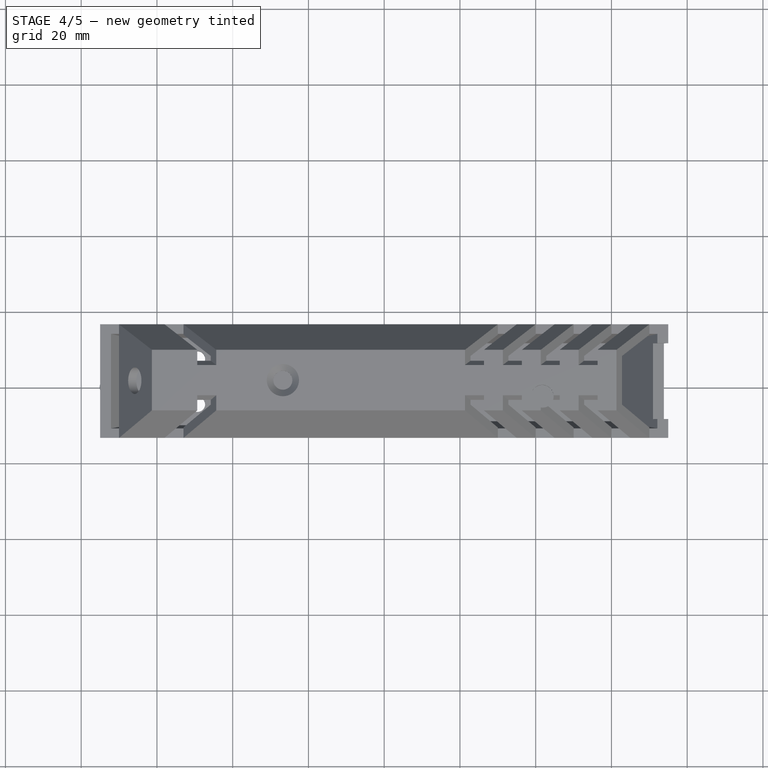
[diagram: stage 4 of 5 — top view after this stage's code; geometry added in this stage tinted green]
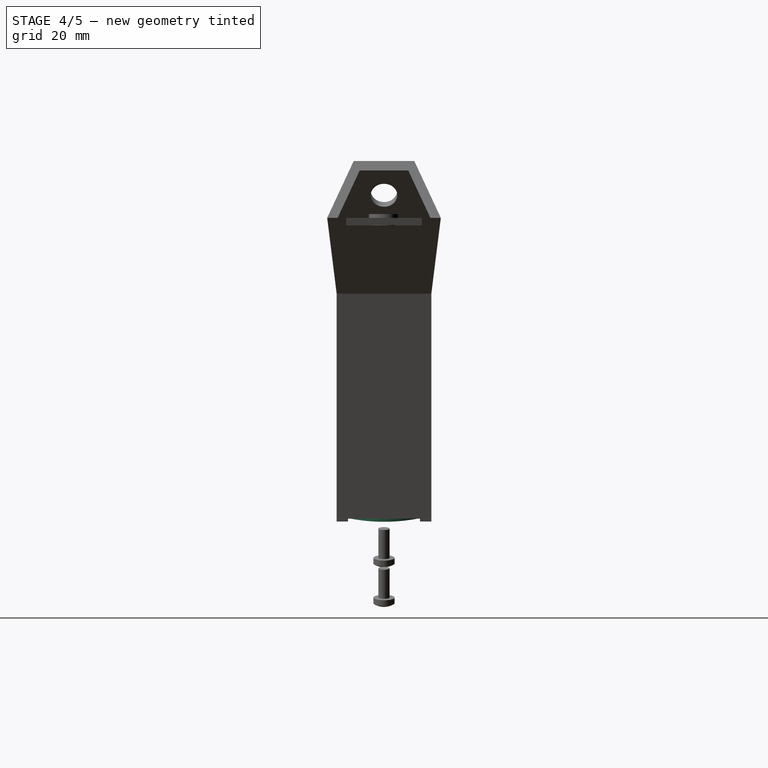
[diagram: stage 4 of 5 — right view after this stage's code; geometry added in this stage tinted green]
FEATURE [PartDesign::Pad] Pad006
  Length = 25
  Length2 = 100
  Midplane = true
  Placement = pos=(0,0,0) rot=(1,0,0;1.5708rad)
  Profile = -> Sketch003
  Type = 0
FEATURE [Sketcher::SketchObject] Sketch011
  ExternalGeometry = -> [Pad006]
  MapMode = 5
  Placement = pos=(-20.7055,-1.72e-14,-77.2741) rot=(0.991445,0,-0.130526;3.14159rad)
  Support = -> [Pad006]
  sketch-geometry (4):
    g0: LineSegment StartX=1.78e-14 StartY=9.5 StartZ=0 EndX=4 EndY=9.5 EndZ=0
    g1: LineSegment StartX=4 StartY=9.5 StartZ=0 EndX=4 EndY=-9.5 EndZ=0
    g2: LineSegment StartX=4 StartY=-9.5 StartZ=0 EndX=1.78e-14 EndY=-9.5 EndZ=0
    g3: LineSegment StartX=1.78e-14 StartY=-9.5 StartZ=0 EndX=1.78e-14 EndY=9.5 EndZ=0
  constraints (11):
    c: Coincident(g0,g1)
    c: Coincident(g1,g2)
    c: Coincident(g2,g3)
    c: Coincident(g3,g0)
    c: Horizontal(g0)
    c: Horizontal(g2)
    c: Vertical(g3)
    c: PointOnObject(g0,g-3)
    c: Symmetric(g0,g1,g-1)
    c: Distance(g1) = 19
    c: Distance(g0) = 4
FEATURE [PartDesign::Pocket] Pocket003
  BaseFeature = -> Pad006
  Length = 70
  Length2 = 100
  Placement = pos=(0,0,0) rot=(1,0,0;1.5708rad)
  Profile = -> Sketch011
  Type = 0
FEATURE [Sketcher::SketchObject] Sketch012
  ExternalGeometry = -> [Pocket003]
  MapMode = 5
  Placement = pos=(-20.7055,-1.72e-14,-77.2741) rot=(0.991445,0,-0.130526;3.14159rad)
  Support = -> [Pocket003]
  sketch-geometry (6):
    g0: LineSegment StartX=12 StartY=12.5 StartZ=0 EndX=12 EndY=-12.5 EndZ=0
    g1: LineSegment StartX=12 StartY=-12.5 StartZ=0 EndX=4.98958 EndY=-12.5 EndZ=0
    g2: LineSegment StartX=12 StartY=12.5 StartZ=0 EndX=4.98958 EndY=12.5 EndZ=0
    g3: ArcOfParabola CenterX=11.5 CenterY=0 CenterZ=0 NormalX=0 NormalY=0 NormalZ=1 Focal=6 AngleXU=3.14159 StartAngle=-12.5 EndAngle=12.5
    g4: GeomPoint X=5.5 Y=0 Z=0
    g5: LineSegment [constr] StartX=11.5 StartY=0 StartZ=0 EndX=5.5 EndY=0 EndZ=0
  constraints (15):
    c: Coincident(g2,g0)
    c: PointOnObject(g2,g-4)
    c: InternalAlignment(g4,g3)
    c: Coincident(g4,g5)
    c: Coincident(g3,g5)
    c: PointOnObject(g4,g-1)
    c: PointOnObject(g3,g-1)
    c: Coincident(g3,g2)
    c: Coincident(g3,g1)
    c: DistanceX(g3,g0) = 0.5
    c: Distance(g5) = 6
    c: Coincident(g1,g0)
    c: Coincident(g0,g-5)
    c: Horizontal(g0,g1)
    c: Coincident(g-4,g0)
FEATURE [PartDesign::SubtractivePipe] SubtractivePipe001
  AuxilleryCurvelinear = true
  AuxillerySpineTangent = false
  BaseFeature = -> Pocket003
  Binormal = (0,0,0)
  Mode = 0
  Placement = pos=(0,0,0) rot=(1,0,0;1.5708rad)
  Profile = -> Sketch012
  Spine = -> Pocket003 [Edge22]
  SpineTangent = false
  Transformation = 0
  Transition = 0
FEATURE [PartDesign::AdditiveCylinder] Cylinder
  Angle = 360
  AttacherType = Attacher::AttachEngine3D
  AttachmentOffset = pos=(0,-10,7) rot=(0,0,1;0rad)
  BaseFeature = -> SubtractivePipe001
  Height = 13
  MapMode = 5
  Placement = pos=(7,-3.8e-15,-10) rot=(0.57735,0.57735,0.57735;2.0944rad)
  Radius = 10
  Support = -> [YZ_Plane006]
FEATURE [Sketcher::SketchObject] Sketch013
  MapMode = 5
  Placement = pos=(20,-6.7e-15,-10) rot=(0.57735,0.57735,0.57735;2.0944rad)
  Support = -> [Cylinder]
  sketch-geometry (1):
    g0: Circle CenterX=0 CenterY=0 CenterZ=0 NormalX=0 NormalY=0 NormalZ=1 AngleXU=0 Radius=8
  constraints (2):
    c: Coincident(g0,g-1)
    c: Radius(g0) = 8
FEATURE [PartDesign::Pocket] Pocket004
  BaseFeature = -> Cylinder
  Length = 5
  Length2 = 100
  Placement = pos=(7,-4e-15,-10) rot=(0.57735,0.57735,0.57735;2.0944rad)
  Profile = -> Sketch013
  Type = 1
FEATURE [Sketcher::SketchObject] Sketch017
  MapMode = 5
  Placement = pos=(7,-1.07e-14,0) rot=(0,0,-1;1.5708rad)
  Support = -> [Pocket004]
  sketch-geometry (2):
    g0: Circle CenterX=-7.5 CenterY=-3 CenterZ=0 NormalX=0 NormalY=0 NormalZ=1 AngleXU=0 Radius=1.25
    g1: Circle CenterX=7.5 CenterY=-3 CenterZ=0 NormalX=0 NormalY=0 NormalZ=1 AngleXU=0 Radius=1.25
  constraints (5):
    c: Symmetric(g0,g1,g-2)
    c: DistanceX(g0,g1) = 15
    c: Radius(g0) = 1.25
    c: Radius(g1) = 1.25
    c: DistanceY(g0,g-1) = 3
FEATURE [PartDesign::Pocket] Pocket007
  BaseFeature = -> Pocket004
  Length = 12
  Length2 = 100
  Placement = pos=(7,-4e-15,-10) rot=(0.57735,0.57735,0.57735;2.0944rad)
  Profile = -> Sketch017
  Type = 0
FEATURE [Part::FeaturePython] Screw004  label="M3x8-Screw front grip"  # Fasteners workbench fastener (typed FeaturePython)
  Placement = pos=(-14.5,7.5,-17) rot=(0,0,1;0rad)
  diameter = 4
  invert = false
  length = 3
  matchOuter = false
  offset = 0
  thread = false
  type = 17
FEATURE [Part::FeaturePython] Screw005  label="M3x8-Screw front grip001"  # Fasteners workbench fastener (typed FeaturePython)
  Placement = pos=(-14.5,-7.5,-17) rot=(0,0,1;0rad)
  diameter = 4
  invert = false
  length = 3
  matchOuter = false
  offset = 0
  thread = false
  type = 17
FEATURE [Sketcher::SketchObject] Sketch029
  MapMode = 5
  Placement = pos=(-11.6744,3.86e-14,-79.6939) rot=(0.704063,0.704063,-0.092692;3.32645rad)
  Support = -> [Pocket007]
  sketch-geometry (1):
    g0: Circle CenterX=0 CenterY=-2.5 CenterZ=0 NormalX=0 NormalY=0 NormalZ=1 AngleXU=0 Radius=1.5
  constraints (3):
    c: PointOnObject(g0,g-2)
    c: DistanceY(g0,g-1) = 2.5
    c: Radius(g0) = 1.5
FEATURE [PartDesign::Pocket] Pocket016
  BaseFeature = -> Pocket007
  Length = 10
  Length2 = 100
  Placement = pos=(7,-4e-15,-10) rot=(0.57735,0.57735,0.57735;2.0944rad)
  Profile = -> Sketch029
  Type = 0
FEATURE [PartDesign::Body] Body002  label="front grip"
  Group = -> [Sketch003,Pad006,Sketch011,Pocket003,Sketch012,SubtractivePipe001,Cylinder,Sketch013,Pocket004,Sketch017,Pocket007,Sketch029,Pocket016]
  Origin = -> Origin006
  Placement = pos=(-18.5,0,-20) rot=(0,0,1;0rad)
  Tip = -> Pocket016
FEATURE [Sketcher::SketchObject] Sketch030
  MapMode = 5
  Placement = pos=(-19.7403,-1.64e-14,-73.6718) rot=(0.991445,0,-0.130526;3.14159rad)
  Support = -> [Pocket006]
  sketch-geometry (1):
    g0: Circle CenterX=18 CenterY=0 CenterZ=0 NormalX=0 NormalY=0 NormalZ=1 AngleXU=0 Radius=1.5
  constraints (3):
    c: PointOnObject(g0,g-1)
    c: Radius(g0) = 1.5
    c: Distance(g-1,g0) = 18
FEATURE [PartDesign::Pocket] Pocket017
  BaseFeature = -> Pocket006
  Length = 10
  Length2 = 100
  Placement = pos=(0,0,0) rot=(1,0,0;1.5708rad)
  Profile = -> Sketch030
  Type = 0
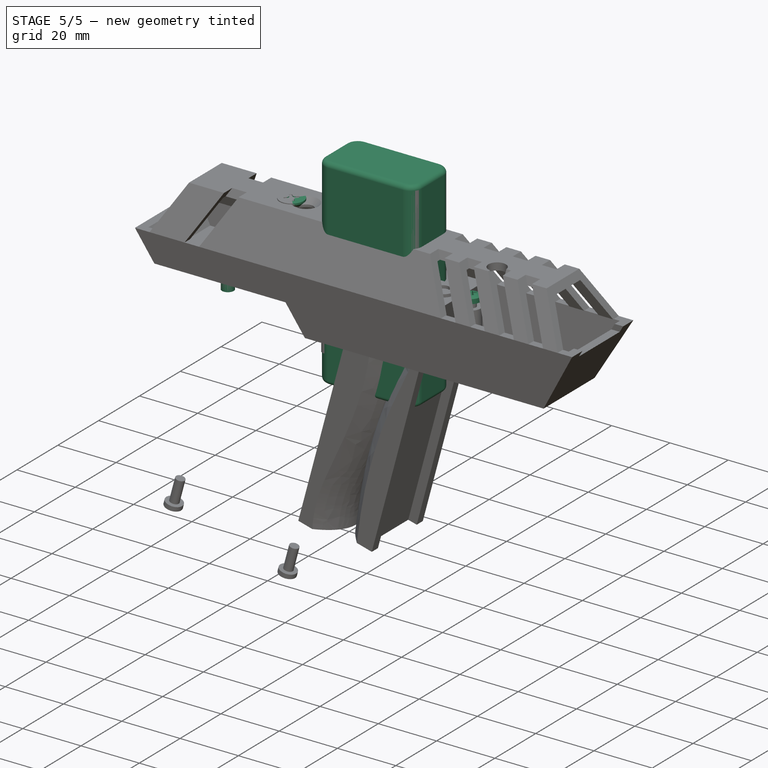
[diagram: stage 5 of 5 — iso view after this stage's code; geometry added in this stage tinted green]
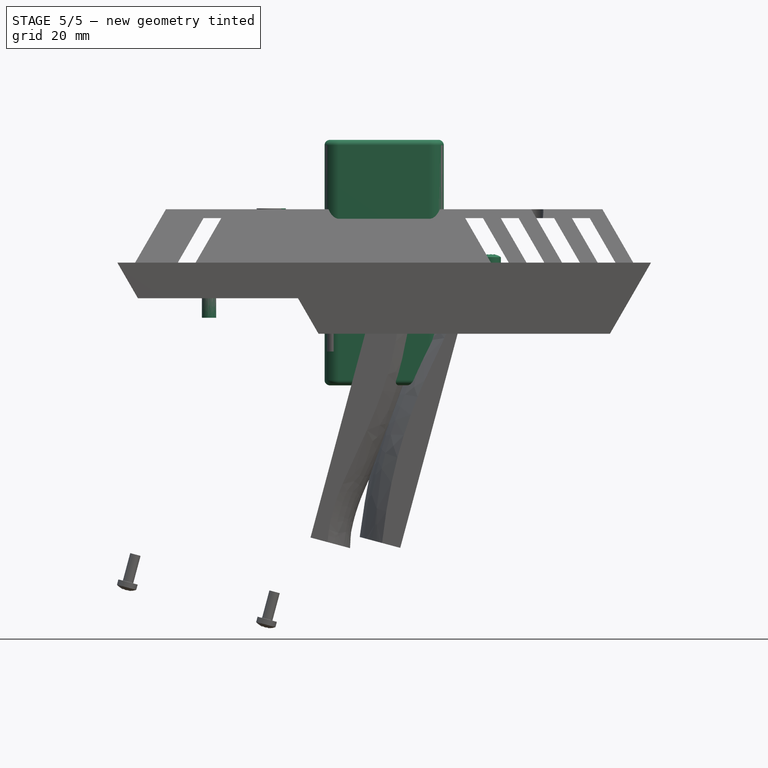
[diagram: stage 5 of 5 — front view after this stage's code; geometry added in this stage tinted green]
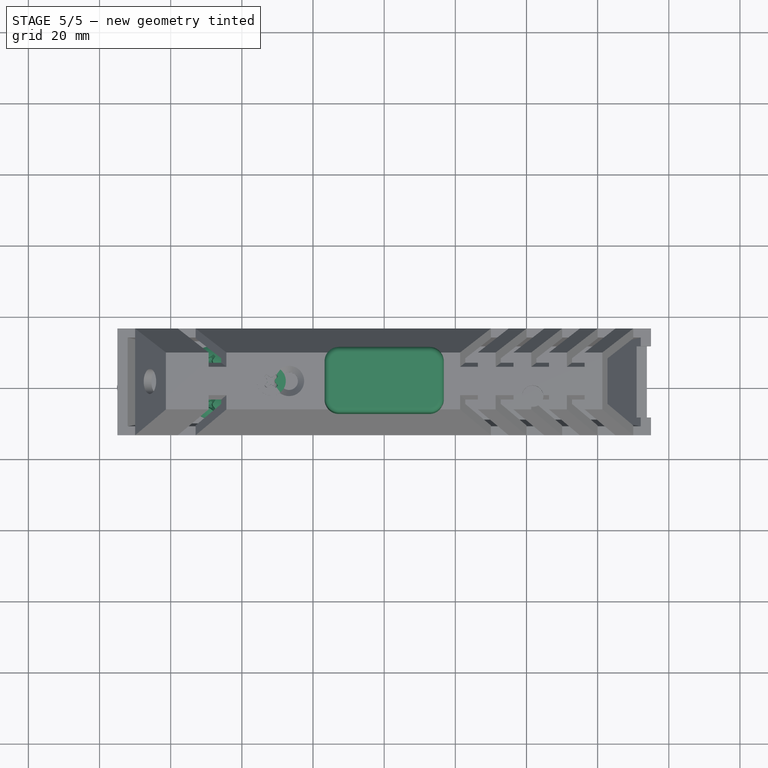
[diagram: stage 5 of 5 — top view after this stage's code; geometry added in this stage tinted green]
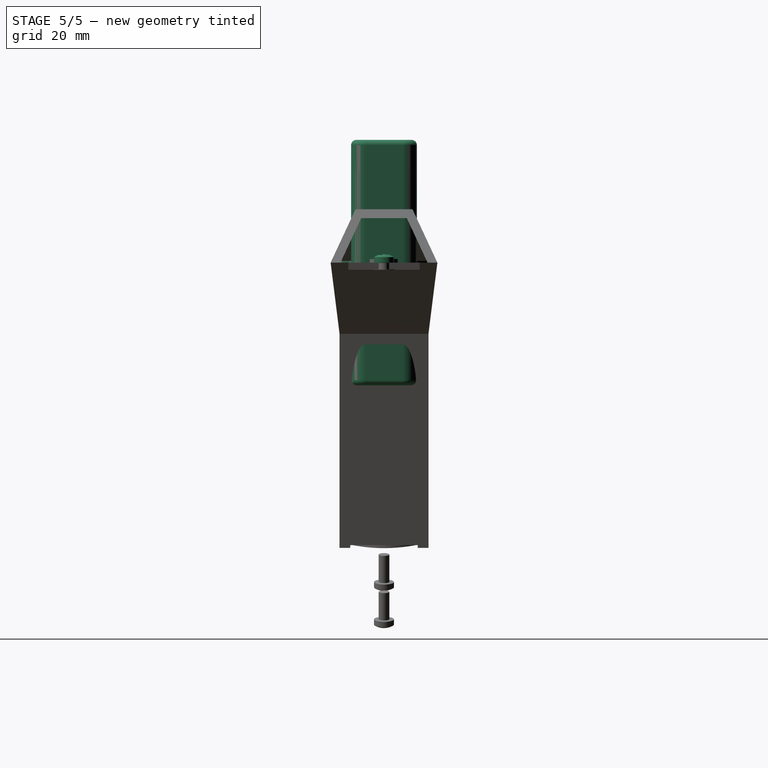
[diagram: stage 5 of 5 — right view after this stage's code; geometry added in this stage tinted green]
FEATURE [Part::Feature] Pcb
  Placement = pos=(-148.5,98.5,0) rot=(0,0,1;0rad)
  shape: bbox 48.9 x 19.05 x 1.6 mm, 52 faces (baked)
FEATURE [Sketcher::SketchObject] PCB_Sketch
  sketch-geometry (4):
    g0: LineSegment StartX=-24.675 StartY=-43.74 StartZ=0 EndX=24.22 EndY=-43.74 EndZ=0
    g1: LineSegment StartX=-24.675 StartY=-24.69 StartZ=0 EndX=24.22 EndY=-24.69 EndZ=0
    g2: LineSegment StartX=-24.675 StartY=-24.69 StartZ=0 EndX=-24.675 EndY=-43.74 EndZ=0
    g3: LineSegment StartX=24.22 StartY=-24.69 StartZ=0 EndX=24.22 EndY=-43.74 EndZ=0
  constraints (4):
    c: Coincident(g0,g2)
    c: Coincident(g1,g2)
    c: Coincident(g0,g3)
    c: Coincident(g1,g3)
FEATURE [App::Part] Board_Geoms
  Group = -> [Pcb,PCB_Sketch]
  Origin = -> Origin
  Placement = pos=(0,34.25,0) rot=(0,0,1;0rad)
FEATURE [Part::Feature] Shape  label="R4_R_Axial_DIN0207_L63mm_D25mm_P254mm_Vertical_5CEDECB2"
  Placement = pos=(15.33,-33.58,0) rot=(0,0,-1;1.5708rad)
  shape: bbox 2.706 x 4.292 x 12.6 mm, 17 faces (baked)
FEATURE [Part::Feature] Shape001  label="U1_DIP-8_W7.62mm_5CEDED09"
  Placement = pos=(-3.72,-29.77,0) rot=(0,0,1;0rad)
  shape: bbox 7.874 x 9.27 x 6.98 mm, 148 faces (baked)
FEATURE [Part::Feature] Shape002  label="R5_R_Axial_DIN0207_L63mm_D25mm_P254mm_Vertical_5CEDECC1"
  Placement = pos=(-11.975,-32.945,0) rot=(0,0,1;3.14159rad)
  shape: bbox 4.292 x 2.706 x 12.6 mm, 17 faces (baked)
FEATURE [Part::Feature] Shape003  label="C1_C_Disc_D30mm_W16mm_P250mm_5CEDEBA8"
  Placement = pos=(6.44,-29.77,0) rot=(0,0,1;1.5708rad)
  shape: bbox 1.6 x 3 x 5.1 mm, 12 faces (baked)
FEATURE [Part::Feature] Shape004  label="D1_LED_D5.0mm_Clear_5CEDEBBA"
  Placement = pos=(-13.245,-39.93,6) rot=(0,0,1;1.5708rad)
  shape: bbox 5.8 x 5.4 x 14.1 mm, 16 faces (baked)
FEATURE [Part::Feature] Shape005  label="D2_LED_D5.0mm_IRGrey_5CEDEBCC"
  Placement = pos=(19.14,-29.77,0) rot=(0,0,1;1.5708rad)
  shape: bbox 5.8 x 5.4 x 14.1 mm, 16 faces (baked)
FEATURE [Part::Feature] Shape006  label="J2_PinHeader_1x01_P254mm_Vertical_5CEDEBF7"
  Placement = pos=(6.44,-37.39,0) rot=(0,0,1;0rad)
  shape: bbox 2.54 x 2.54 x 11.54 mm, 28 faces (baked)
FEATURE [Part::Feature] Shape007  label="J3_PinHeader_1x01_P254mm_Vertical_5CEDEC0C"
  Placement = pos=(-15.785,-27.23,0) rot=(0,0,1;0rad)
  shape: bbox 2.54 x 2.54 x 11.54 mm, 28 faces (baked)
FEATURE [Part::Feature] Shape008  label="J4_PinHeader_1x01_P254mm_Vertical_5CEDEC21"
  Placement = pos=(6.44,-34.85,0) rot=(0,0,1;0rad)
  shape: bbox 2.54 x 2.54 x 11.54 mm, 28 faces (baked)
FEATURE [Part::Feature] Shape009  label="J5_PinHeader_1x01_P254mm_Vertical_5CEDEC36"
  Placement = pos=(13.425,-41.2,0) rot=(0,0,1;0rad)
  shape: bbox 2.54 x 2.54 x 11.54 mm, 28 faces (baked)
FEATURE [Part::Feature] Shape010  label="J6_PinHeader_1x01_P254mm_Vertical_5CEDEC4B"
  Placement = pos=(-2.45,-41.2,0) rot=(0,0,1;0rad)
  shape: bbox 2.54 x 2.54 x 11.54 mm, 28 faces (baked)
FEATURE [Part::Feature] Shape012  label="Q1_TO-18-3_5CEDEC76"
  Placement = pos=(11.52,-31.04,0) rot=(0,0,1;1.5708rad)
  shape: bbox 6.148 x 6.148 x 15.33 mm, 20 faces (baked)
FEATURE [Part::Feature] Shape013  label="R1_R_Axial_DIN0207_L63mm_D25mm_P254mm_Vertical_5CEDEC85"
  Placement = pos=(-7.53,-29.77,0) rot=(0,0,1;1.5708rad)
  shape: bbox 2.706 x 4.292 x 12.6 mm, 17 faces (baked)
FEATURE [Part::Feature] Shape014  label="R2_R_Axial_DIN0207_L63mm_D25mm_P254mm_Vertical_5CEDEC94"
  Placement = pos=(11.52,-37.39,0) rot=(0,0,1;1.5708rad)
  shape: bbox 2.706 x 4.292 x 12.6 mm, 17 faces (baked)
FEATURE [Part::Feature] Shape015  label="R3_R_Axial_DIN0207_L63mm_D25mm_P254mm_Vertical_5CEDECA3"
  Placement = pos=(-6.895,-34.85,0) rot=(0,0,1;3.14159rad)
  shape: bbox 4.292 x 2.706 x 12.6 mm, 17 faces (baked)
FEATURE [Part::Feature] Shape018  label="U2_Vishay_CAST-3pin_5CEDED2A"
  Placement = pos=(19.14,-41.2,0) rot=(0,0,1;1.5708rad)
  shape: bbox 5.9 x 10 x 20.5 mm, 49 faces (baked)
FEATURE [Part::Feature] Shape019  label="C2_C_Disc_D30mm_W16mm_P250mm_5CF017E2"
  Placement = pos=(-12.61,-27.23,0) rot=(0,0,-1;1.5708rad)
  shape: bbox 1.6 x 3 x 5.1 mm, 12 faces (baked)
FEATURE [App::Part] Top
  Group = -> [Shape,Shape001,Shape002,Shape003,Shape004,Shape005,Shape006,Shape007,Shape008,Shape009,Shape010,Shape012,Shape013,Shape014,Shape015,Shape018,Shape019]
  Origin = -> Origin003
FEATURE [App::Part] Step_Models
  Group = -> [Top]
  Origin = -> Origin002
  Placement = pos=(0,34.25,0) rot=(0,0,1;0rad)
FEATURE [App::Part] Board  label="pcb"
  Group = -> [Board_Geoms,Step_Models]
  Origin = -> Origin001
  Placement = pos=(50,0,0) rot=(0,0,1;0rad)
FEATURE [Sketcher::SketchObject] Sketch
  MapMode = 5
  Placement = pos=(0,0,0) rot=(1,0,0;1.5708rad)
  Support = -> [XZ_Plane004]
  sketch-geometry (4):
    g0: LineSegment StartX=-16.75 StartY=34.5 StartZ=0 EndX=16.75 EndY=34.5 EndZ=0
    g1: LineSegment StartX=16.75 StartY=34.5 StartZ=0 EndX=16.75 EndY=-34.5 EndZ=0
    g2: LineSegment StartX=16.75 StartY=-34.5 StartZ=0 EndX=-16.75 EndY=-34.5 EndZ=0
    g3: LineSegment StartX=-16.75 StartY=-34.5 StartZ=0 EndX=-16.75 EndY=34.5 EndZ=0
  constraints (10):
    c: Coincident(g0,g1)
    c: Coincident(g1,g2)
    c: Coincident(g2,g3)
    c: Coincident(g3,g0)
    c: Horizontal(g2)
    c: Vertical(g1)
    c: Symmetric(g0,g0,g-2)
    c: Symmetric(g0,g2,g-1)
    c: Distance(g3) = 69
    c: Distance(g0) = 33.5
FEATURE [PartDesign::Pad] Pad
  Length = 18.5
  Length2 = 100
  Midplane = true
  Placement = pos=(0,0,0) rot=(1,0,0;1.5708rad)
  Profile = -> Sketch
  Type = 0
FEATURE [PartDesign::Fillet] Fillet
  Base = -> Pad [Edge12,Edge11,Edge7,Edge6]
  BaseFeature = -> Pad
  Placement = pos=(0,0,0) rot=(1,0,0;1.5708rad)
  Radius = 4
FEATURE [PartDesign::Fillet] Fillet001
  Base = -> Fillet [Face1,Face10]
  BaseFeature = -> Fillet
  Placement = pos=(0,0,0) rot=(1,0,0;1.5708rad)
  Radius = 1.5
FEATURE [Part::FeaturePython] Screw  label="M3x8-Screw"  # Fasteners workbench fastener (typed FeaturePython)
  Placement = pos=(30,0,0) rot=(0,0,1;0rad)
  diameter = 4
  invert = false
  length = 3
  matchOuter = false
  offset = 0
  thread = false
  type = 16
FEATURE [Sketcher::SketchObject] Sketch019
  MapMode = 5
  Support = -> [XY_Plane009]
  sketch-geometry (1):
    g0: Circle CenterX=0 CenterY=0 CenterZ=0 NormalX=0 NormalY=0 NormalZ=1 AngleXU=0 Radius=13.5
  constraints (2):
    c: Coincident(g0,g-1)
    c: Radius(g0) = 13.5
FEATURE [PartDesign::Pad] Pad007
  Length = 0.5
  Length2 = 100
  Profile = -> Sketch019
  Type = 0
FEATURE [Part::FeaturePython] Screw001  label="M4x8-Screw back grip"  # Fasteners workbench fastener (typed FeaturePython)
  Placement = pos=(-49.25,6,-7.5) rot=(0,0,1;0rad)
  diameter = 6
  invert = false
  length = 2
  matchOuter = false
  offset = 0
  thread = false
  type = 16
FEATURE [Part::FeaturePython] Screw002  label="M4x8-Screw back grip001"  # Fasteners workbench fastener (typed FeaturePython)
  Placement = pos=(-49.25,-6.25,-7.5) rot=(0,0,1;0rad)
  diameter = 6
  invert = false
  length = 2
  matchOuter = false
  offset = 0
  thread = false
  type = 16
FEATURE [Sketcher::SketchObject] Sketch022
  MapMode = 5
  Support = -> [XY_Plane011]
  sketch-geometry (1):
    g0: Circle CenterX=0 CenterY=0 CenterZ=0 NormalX=0 NormalY=0 NormalZ=1 AngleXU=0 Radius=4
  constraints (2):
    c: Coincident(g0,g-1)
    c: Radius(g0) = 4
FEATURE [PartDesign::Pad] Pad009
  Length = 20
  Length2 = 100
  Profile = -> Sketch022
  Type = 0
FEATURE [PartDesign::Pocket] Pocket011
  BaseFeature = -> Pad009
  Length = 7
  Length2 = 100
  Profile = -> Sketch023
  Type = 0
FEATURE [Sketcher::SketchObject] Sketch025
  MapMode = 5
  Placement = pos=(0,0,20) rot=(0,0,1;0rad)
  Support = -> [Pocket011]
  sketch-geometry (1):
    g0: Circle CenterX=0 CenterY=0 CenterZ=0 NormalX=0 NormalY=0 NormalZ=1 AngleXU=0 Radius=1.75
  constraints (2):
    c: Coincident(g0,g-1)
    c: Radius(g0) = 1.75
FEATURE [PartDesign::Pocket] Pocket012
  BaseFeature = -> Pocket011
  Length = 10
  Length2 = 100
  Profile = -> Sketch025
  Type = 0
FEATURE [PartDesign::Body] Body006  label="top support"
  Group = -> [Sketch022,Pad009,Sketch023,Pocket011,Sketch025,Pocket012]
  Origin = -> Origin011
  Placement = pos=(-31.75,0,-7.5) rot=(0,0,1;0rad)
  Tip = -> Pocket012
FEATURE [Part::FeaturePython] Screw003  label="M4x8-Screw  top"  # Fasteners workbench fastener (typed FeaturePython)
  Placement = pos=(-31.75,0,15.25) rot=(0,0,1;0rad)
  diameter = 6
  invert = false
  length = 2
  matchOuter = false
  offset = 0
  thread = false
  type = 17
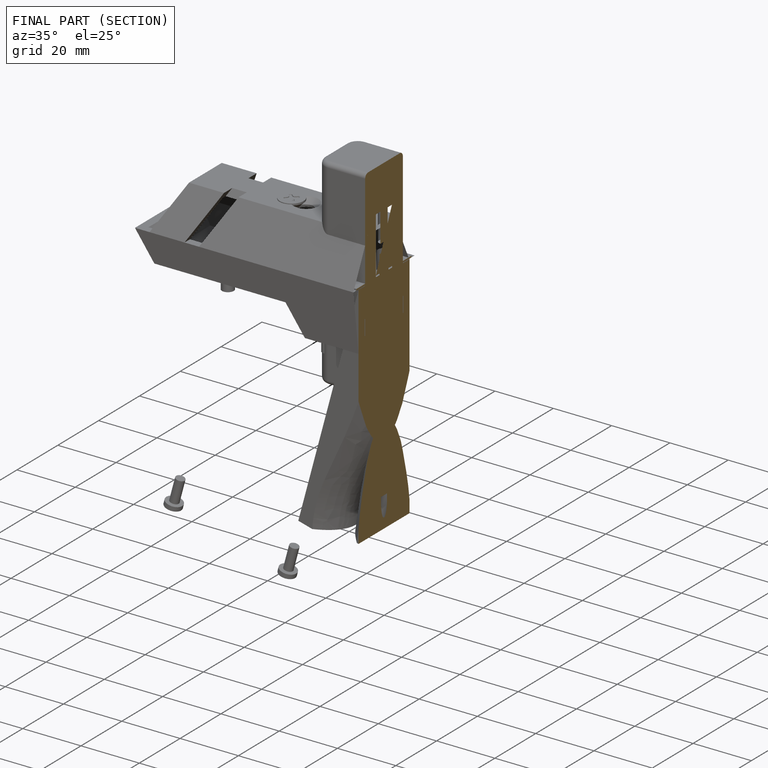
[diagram: finished part — half-section view (interior)]
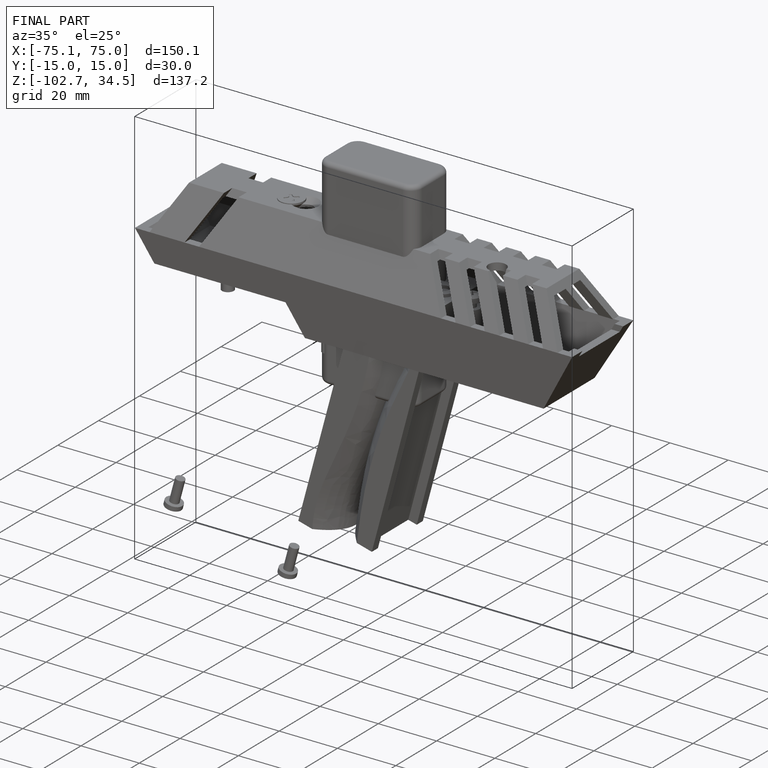
[diagram: finished part — iso view with bounding-box wireframe]
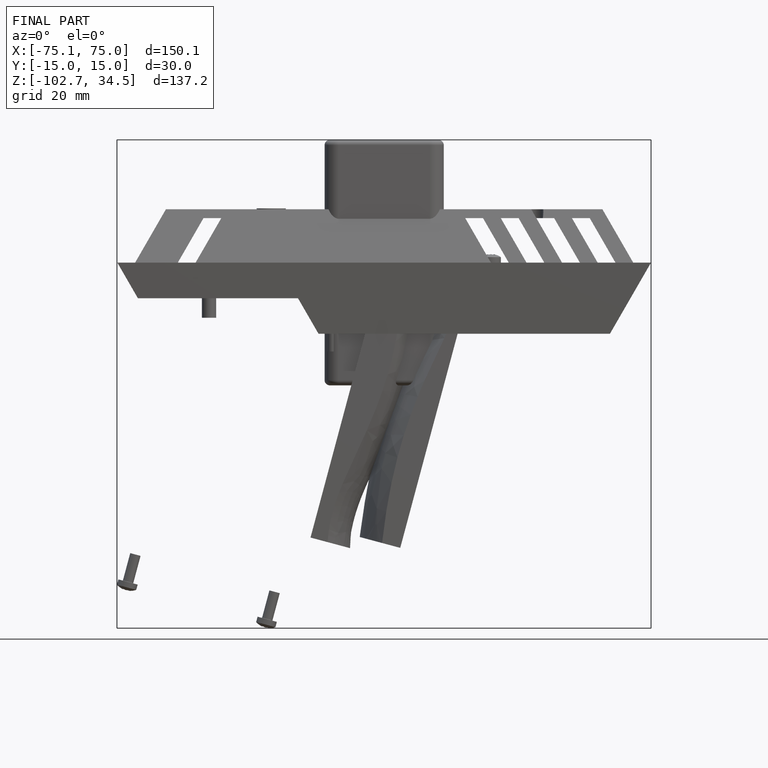
[diagram: finished part — front view with bounding-box wireframe]
